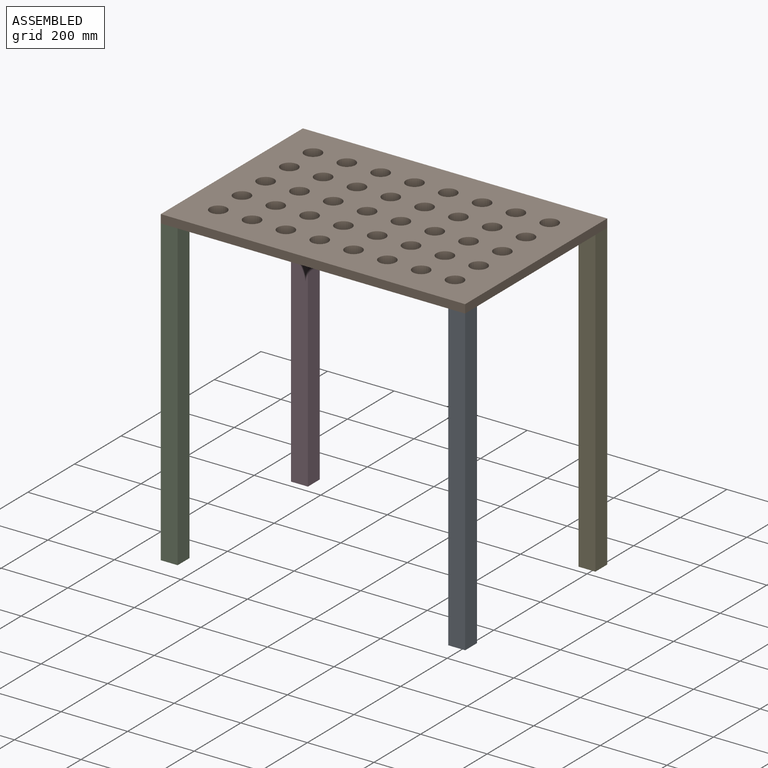
[diagram: assembled view]
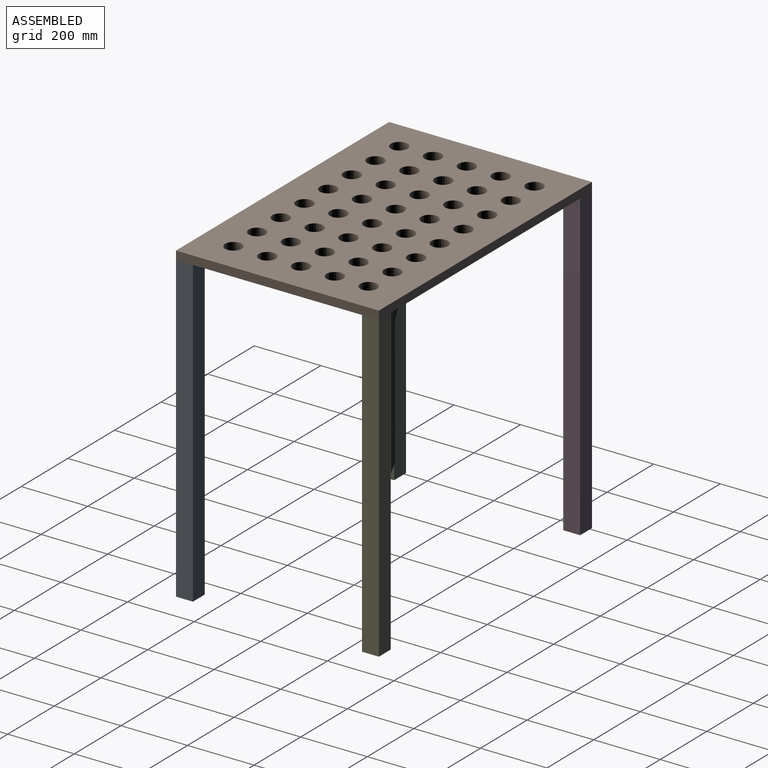
[diagram: assembled view, second angle]
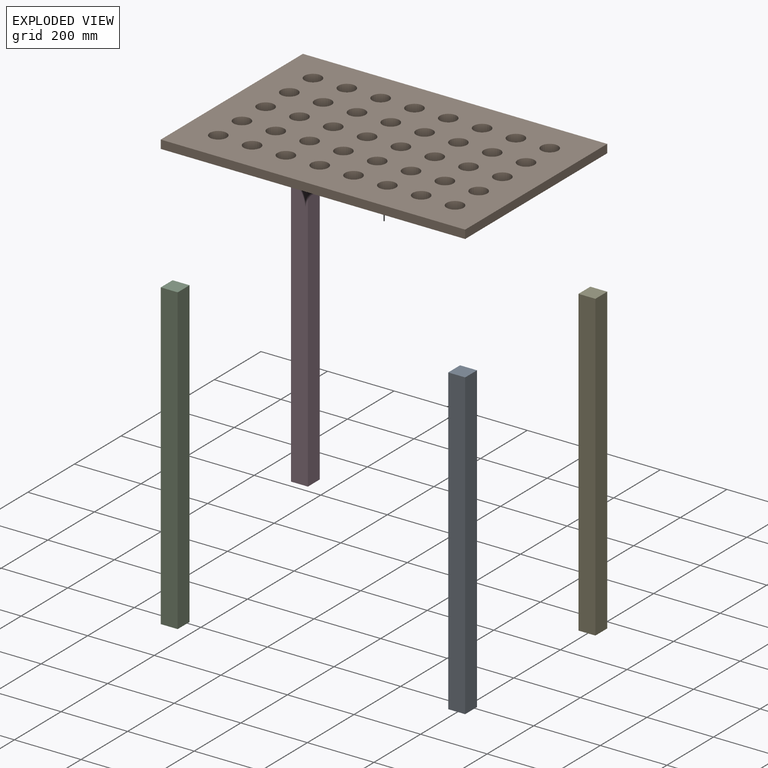
[diagram: exploded view]
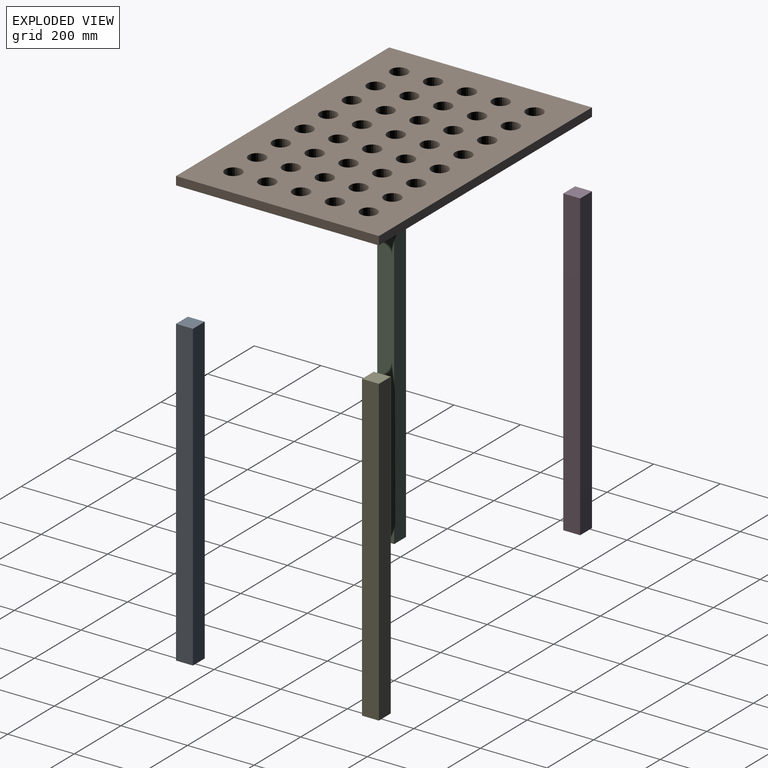
[diagram: exploded view, second angle]
ASSEMBLY  parts=5 mates=4
PART A: 6 faces, bbox 50.8x50.8x914.4 mm
  f0: plane 914.4x50.8mm, normal (0,-1,0), area 46451.5mm2, adj f1,f3,f4,f5
  f1: plane 914.4x50.8mm, normal (1,0,0), area 46451.5mm2, adj f0,f2,f4,f5
  f2: plane 914.4x50.8mm, normal (0,1,0), area 46451.5mm2, adj f1,f3,f4,f5
  f3: plane 914.4x50.8mm, normal (-1,0,0), area 46451.5mm2, adj f0,f2,f4,f5
  f4: plane 50.8x50.8mm, normal (0,0,1), area 2580.6mm2, adj f0,f1,f2,f3
  f5: plane 50.8x50.8mm, normal (0,0,-1), area 2580.6mm2, adj f0,f1,f2,f3
PART B: 46 faces, bbox 914.4x609.6x25.4 mm
  f0: plane 914.4x25.4mm, normal (0,-1,0), area 23225.8mm2, adj f1,f43,f44,f45
  f1: plane 609.6x25.4mm, normal (1,0,0), area 15483.8mm2, adj f0,f2,f44,f45
  f2: plane 914.4x25.4mm, normal (0,1,0), area 23225.8mm2, adj f1,f43,f44,f45
  f3: cylinder r=25.4mm len=50.8mm, axis (0,0,-1), area 4053.7mm2, adj f44,f45
  f4: cylinder r=25.4mm len=50.8mm, axis (0,0,-1), area 4053.7mm2, adj f44,f45
  f5: cylinder r=25.4mm len=50.8mm, axis (0,0,-1), area 4053.7mm2, adj f44,f45
  f6: cylinder r=25.4mm len=50.8mm, axis (0,0,-1), area 4053.7mm2, adj f44,f45
  f7: cylinder r=25.4mm len=50.8mm, axis (0,0,-1), area 4053.7mm2, adj f44,f45
  f8: cylinder r=25.4mm len=50.8mm, axis (0,0,-1), area 4053.7mm2, adj f44,f45
  f9: cylinder r=25.4mm len=50.8mm, axis (0,0,-1), area 4053.7mm2, adj f44,f45
  f10: cylinder r=25.4mm len=50.8mm, axis (0,0,-1), area 4053.7mm2, adj f44,f45
  f11: cylinder r=25.4mm len=50.8mm, axis (0,0,-1), area 4053.7mm2, adj f44,f45
  f12: cylinder r=25.4mm len=50.8mm, axis (0,0,-1), area 4053.7mm2, adj f44,f45
  f13: cylinder r=25.4mm len=50.8mm, axis (0,0,-1), area 4053.7mm2, adj f44,f45
  f14: cylinder r=25.4mm len=50.8mm, axis (0,0,-1), area 4053.7mm2, adj f44,f45
  f15: cylinder r=25.4mm len=50.8mm, axis (0,0,-1), area 4053.7mm2, adj f44,f45
  f16: cylinder r=25.4mm len=50.8mm, axis (0,0,-1), area 4053.7mm2, adj f44,f45
  f17: cylinder r=25.4mm len=50.8mm, axis (0,0,-1), area 4053.7mm2, adj f44,f45
  f18: cylinder r=25.4mm len=50.8mm, axis (0,0,-1), area 4053.7mm2, adj f44,f45
  f19: cylinder r=25.4mm len=50.8mm, axis (0,0,-1), area 4053.7mm2, adj f44,f45
  f20: cylinder r=25.4mm len=50.8mm, axis (0,0,-1), area 4053.7mm2, adj f44,f45
  f21: cylinder r=25.4mm len=50.8mm, axis (0,0,-1), area 4053.7mm2, adj f44,f45
  f22: cylinder r=25.4mm len=50.8mm, axis (0,0,-1), area 4053.7mm2, adj f44,f45
  f23: cylinder r=25.4mm len=50.8mm, axis (0,0,-1), area 4053.7mm2, adj f44,f45
  f24: cylinder r=25.4mm len=50.8mm, axis (0,0,-1), area 4053.7mm2, adj f44,f45
  f25: cylinder r=25.4mm len=50.8mm, axis (0,0,-1), area 4053.7mm2, adj f44,f45
  f26: cylinder r=25.4mm len=50.8mm, axis (0,0,-1), area 4053.7mm2, adj f44,f45
  f27: cylinder r=25.4mm len=50.8mm, axis (0,0,-1), area 4053.7mm2, adj f44,f45
  f28: cylinder r=25.4mm len=50.8mm, axis (0,0,-1), area 4053.7mm2, adj f44,f45
  f29: cylinder r=25.4mm len=50.8mm, axis (0,0,-1), area 4053.7mm2, adj f44,f45
  f30: cylinder r=25.4mm len=50.8mm, axis (0,0,-1), area 4053.7mm2, adj f44,f45
  f31: cylinder r=25.4mm len=50.8mm, axis (0,0,-1), area 4053.7mm2, adj f44,f45
  f32: cylinder r=25.4mm len=50.8mm, axis (0,0,-1), area 4053.7mm2, adj f44,f45
  f33: cylinder r=25.4mm len=50.8mm, axis (0,0,-1), area 4053.7mm2, adj f44,f45
  f34: cylinder r=25.4mm len=50.8mm, axis (0,0,-1), area 4053.7mm2, adj f44,f45
  f35: cylinder r=25.4mm len=50.8mm, axis (0,0,-1), area 4053.7mm2, adj f44,f45
  f36: cylinder r=25.4mm len=50.8mm, axis (0,0,-1), area 4053.7mm2, adj f44,f45
  f37: cylinder r=25.4mm len=50.8mm, axis (0,0,-1), area 4053.7mm2, adj f44,f45
  f38: cylinder r=25.4mm len=50.8mm, axis (0,0,-1), area 4053.7mm2, adj f44,f45
  f39: cylinder r=25.4mm len=50.8mm, axis (0,0,-1), area 4053.7mm2, adj f44,f45
  f40: cylinder r=25.4mm len=50.8mm, axis (0,0,-1), area 4053.7mm2, adj f44,f45
  f41: cylinder r=25.4mm len=50.8mm, axis (0,0,-1), area 4053.7mm2, adj f44,f45
  f42: cylinder r=25.4mm len=50.8mm, axis (0,0,-1), area 4053.7mm2, adj f44,f45
  f43: plane 609.6x25.4mm, normal (-1,0,0), area 15483.8mm2, adj f0,f2,f44,f45
  f44: plane 914.4x609.6mm, normal (0,0,1), area 476345mm2, adj f0,f1,f2,f3,f4,f5,f6,f7
  f45: plane 914.4x609.6mm, normal (0,0,-1), area 476345mm2, adj f0,f1,f2,f3,f4,f5,f6,f7
PART C: same geometry as A
PART D: same geometry as A
PART E: same geometry as A
PLACE A t=(852.98,174.64,-691.08)mm
PLACE B t=(-163.02,46.88,223.32)mm
PLACE C t=(-10.62,174.64,-691.08)mm
PLACE D t=(-10.62,733.44,-691.08)mm
PLACE E t=(852.98,733.44,-691.08)mm
MATE fastened C.f4 <-> B.f45  axis (0,0,1) through (-264.62,-79.75,223.32)mm
MATE fastened E.f4 <-> B.f45  axis (0,0,1) through (649.78,529.85,223.32)mm
MATE fastened D.f4 <-> B.f45  axis (0,0,1) through (-264.62,529.85,223.32)mm
MATE fastened A.f4 <-> B.f45  axis (0,0,1) through (649.78,-79.75,223.32)mm
